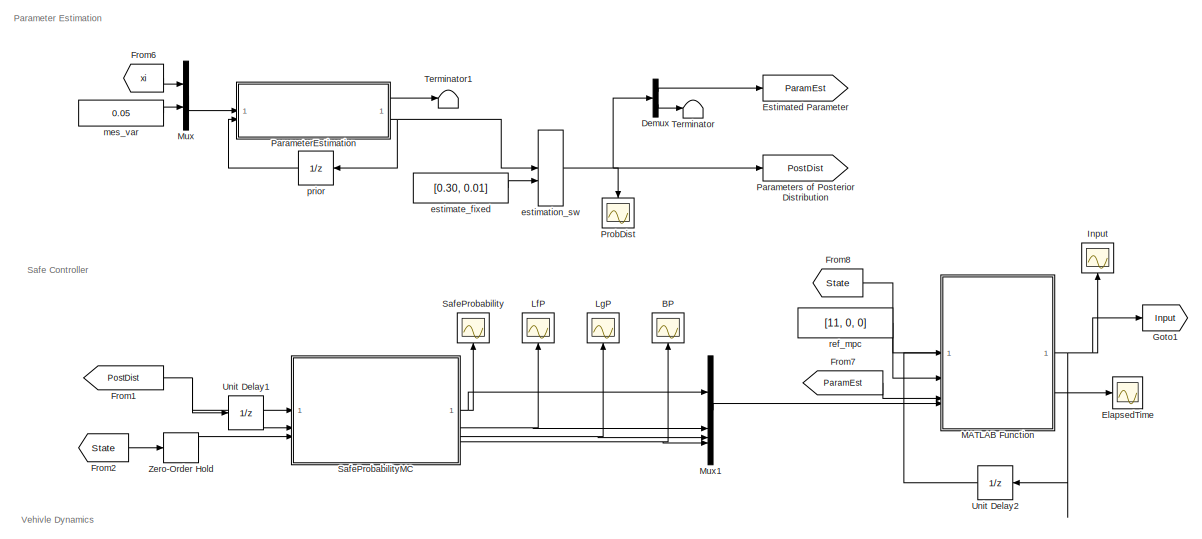
[diagram: root canvas - part 1/2, full width, top band]
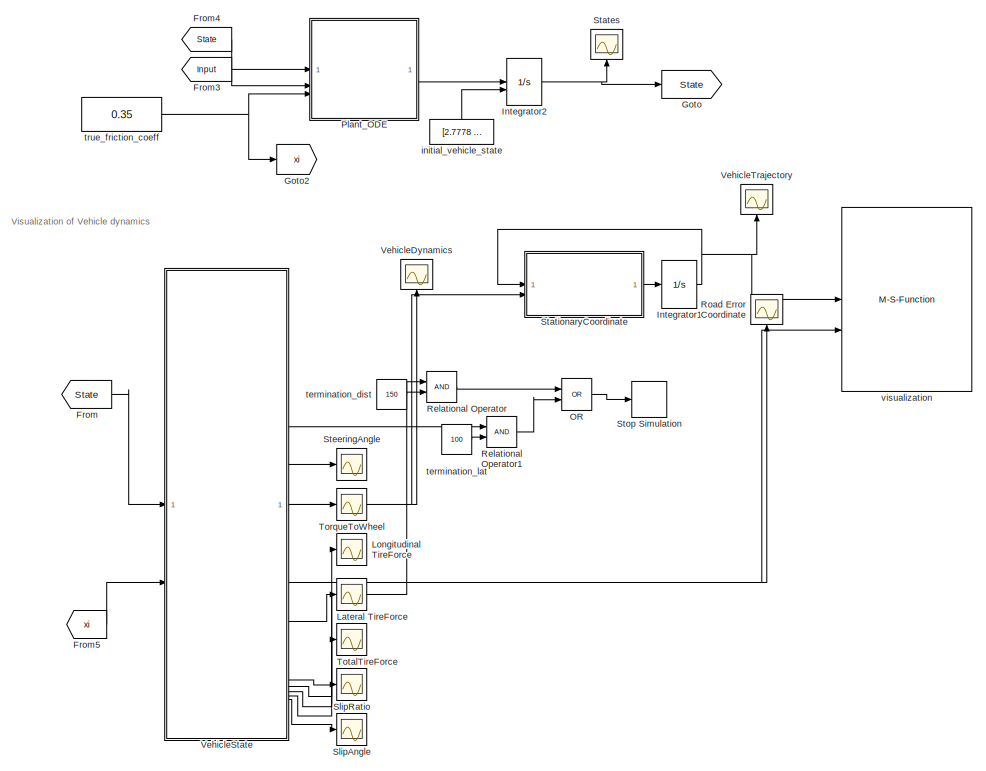
[diagram: root canvas - part 2/2, full width, bottom band]
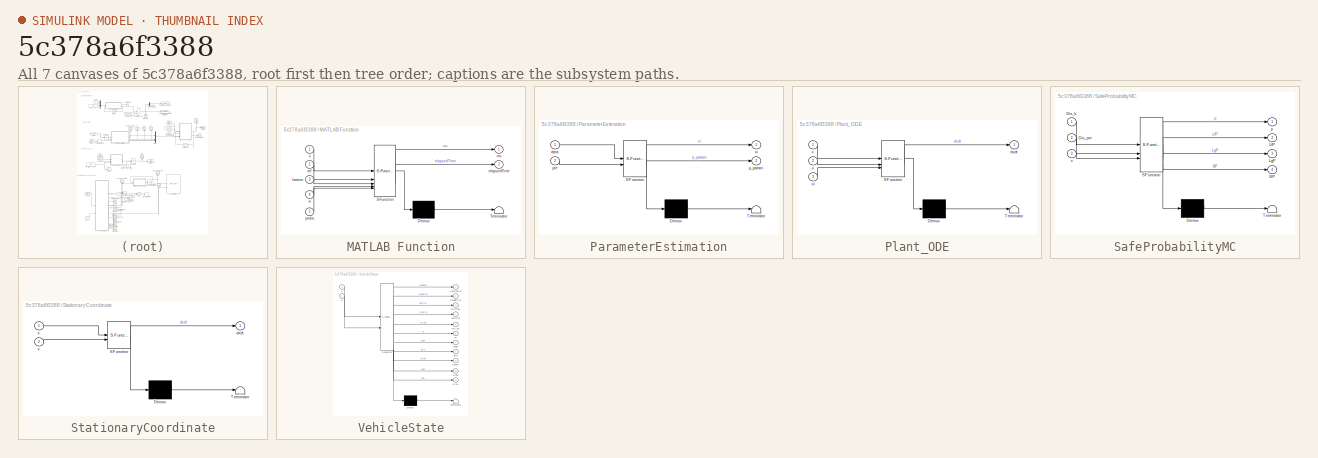
[diagram: thumbnail index - all 7 canvases of the model, root first then tree order]
MODEL slx_5c378a6f3388
KIND model
CONFIG AbsTol = auto
CONFIG EnableMultiTasking = off
CONFIG FixedStep = auto
CONFIG MaxStep = auto
CONFIG MinStep = auto
CONFIG RelTol = 1e-3
CONFIG SampleTimeConstraint = Unconstrained
CONFIG SolverName = VariableStepAuto
CONFIG StartTime = 0.0
CONFIG StopTime = 40
BLOCK [Scope] BP
  ActiveDisplayYMaximum = 0.10375
  ActiveDisplayYMinimum = -0.13375
  DataLogging = on
  DataLoggingVariableName = BP
  Floating = off
  GraphicalSettings = {"GraphicalSettings":{"LegacySettings":true,"Style":{"AxesScalingProperties":{"ScaleAxesLimitsAtStop":false},"Style":{"AxesColor":"[0 0 0]","ChannelNames":[""],"ColorOrder":"[1 1 0.0666666666666667;0.0745098039215686 0.623529411764706 1;1 0.411764705882353 0.16078431372549;0.392156862745098 0.831372549019608 0.0745098039215686;0.717647058823529 0.274509803921569 1;0.0588235294117647 1 1;1 0.074509...<+461ch>
  MultipleDisplayCache = [{"MaxYLimMag":0.13375,"MaxYLimReal":0.10375,"MinYLimMag":0,"MinYLimReal":-0.13375,"PlotAsMagnitudePhase":false,"ShowGrid":true,"ShowLegend":false,"Title":"%<SignalLabel>","YLabel":""}]
  NameLocation = top
  NumInputPorts = 1
  WasSavedAsWebScope = on
BLOCK [Demux] Demux
  Outputs = 2
BLOCK [Scope] ElapsedTime
  ActiveDisplayYMaximum = 0.91637
  ActiveDisplayYMinimum = -0.96659
  DataLogging = on
  DataLoggingVariableName = ElapsedTime
  Floating = off
  GraphicalSettings = {"Style":{"BackgroundColor":[0.12941176470588237,0.12941176470588237,0.12941176470588237],"AxesColor":[0.07058823529411765,0.07058823529411765,0.07058823529411765],"LabelsColor":[0.8509803921568627,0.8509803921568627,0.8509803921568627],"PreserveColors":false,"Visible":[true],"LineStyle":["-"],"LineWidth":[1.5],"BarWidth":[0.9],"LineColor":["auto"],"LineFaceAlpha":[1],"LineEdgeAlpha":[1],"Marker":...<+1970ch>
  MultipleDisplayCache = [{"MaxYLimMag":0.96659,"MaxYLimReal":0.91637,"MinYLimMag":0,"MinYLimReal":-0.96659,"PlotAsMagnitudePhase":false,"ShowGrid":true,"ShowLegend":true,"Title":"%<SignalLabel>","YLabel":""}]
  NameLocation = right
  NumInputPorts = 1
  SampleTime = 0.1
  ScopeFrameLocation = window
  ShowLegend = on
  Visible = on
  WasSavedAsWebScope = on
  WindowPosition = [770.000000,1.000000,1151.000000,305.000000,]
BLOCK [Goto] Estimated Parameter
  GotoTag = ParamEst
  NameLocation = top
BLOCK [From] From
  GotoTag = State
BLOCK [From] From1
  GotoTag = PostDist
BLOCK [From] From2
  GotoTag = State
BLOCK [From] From3
  GotoTag = Input
BLOCK [From] From4
  GotoTag = State
BLOCK [From] From5
  GotoTag = xi
BLOCK [From] From6
  GotoTag = xi
BLOCK [From] From7
  GotoTag = ParamEst
BLOCK [From] From8
  GotoTag = State
BLOCK [Goto] Goto
  GotoTag = State
BLOCK [Goto] Goto1
  GotoTag = Input
  NameLocation = top
BLOCK [Goto] Goto2
  GotoTag = xi
BLOCK [Scope] Input
  ActiveDisplayYMaximum = 0.91637
  ActiveDisplayYMinimum = -0.96659
  DataLogging = on
  DataLoggingVariableName = Input
  Floating = off
  GraphicalSettings = {"GraphicalSettings":{"LegacySettings":true,"Style":{"AxesScalingProperties":{"ScaleAxesLimitsAtStop":false},"Style":{"AxesColor":"[0 0 0]","ChannelNames":[""],"ColorOrder":"[1 0.909803921568627 0.392156862745098;0.149019607843137 0.549019607843137 0.866666666666667;0.96078431372549 0.466666666666667 0.16078431372549;0.286274509803922 0.858823529411765 0.250980392156863;0.752941176470588 0.3607843...<+645ch>
  MultipleDisplayCache = [{"MaxYLimMag":0.96659,"MaxYLimReal":0.91637,"MinYLimMag":0,"MinYLimReal":-0.96659,"PlotAsMagnitudePhase":false,"ShowGrid":true,"ShowLegend":true,"Title":"%<SignalLabel>","YLabel":""}]
  NameLocation = top
  NumInputPorts = 1
  ShowLegend = on
  WasSavedAsWebScope = on
  WindowPosition = [888 378 1141 312]
BLOCK [Integrator] Integrator1
  InitialCondition = [0; 0; 0]
BLOCK [Integrator] Integrator2
  InitialConditionSource = external
BLOCK [Scope] Lateral TireForce
  ActiveDisplayYMaximum = 1900.60095
  ActiveDisplayYMinimum = -924.98438
  DataLoggingVariableName = ScopeData1
  Floating = off
  GraphicalSettings = {"GraphicalSettings":{"LegacySettings":true,"Style":{"AxesScalingProperties":{"ScaleAxesLimitsAtStop":false},"Style":{"AxesColor":"[0 0 0]","ChannelNames":[""],"ColorOrder":"[1 1 0.0666666666666667;0.0745098039215686 0.623529411764706 1;1 0.411764705882353 0.16078431372549;0.392156862745098 0.831372549019608 0.0745098039215686;0.717647058823529 0.274509803921569 1;0.0588235294117647 1 1;1 0.074509...<+609ch>
  MultipleDisplayCache = [{"MaxYLimMag":1900.60095,"MaxYLimReal":1900.60095,"MinYLimMag":0,"MinYLimReal":-924.98438,"PlotAsMagnitudePhase":false,"ShowGrid":true,"ShowLegend":true,"Title":"%<SignalLabel>","YLabel":""}]
  NameLocation = right
  NumInputPorts = 1
  ShowLegend = on
  WasSavedAsWebScope = on
BLOCK [Scope] LfP
  ActiveDisplayYMaximum = 1.6375
  ActiveDisplayYMinimum = -5.7375
  DataLogging = on
  DataLoggingVariableName = LfP
  Floating = off
  GraphicalSettings = {"GraphicalSettings":{"LegacySettings":true,"Style":{"AxesScalingProperties":{"ScaleAxesLimitsAtStop":false},"Style":{"AxesColor":"[0 0 0]","ChannelNames":[""],"ColorOrder":"[1 1 0.0666666666666667;0.0745098039215686 0.623529411764706 1;1 0.411764705882353 0.16078431372549;0.392156862745098 0.831372549019608 0.0745098039215686;0.717647058823529 0.274509803921569 1;0.0588235294117647 1 1;1 0.074509...<+434ch>
  MultipleDisplayCache = [{"MaxYLimMag":5.7375,"MaxYLimReal":1.6375,"MinYLimMag":0,"MinYLimReal":-5.7375,"PlotAsMagnitudePhase":false,"ShowGrid":true,"ShowLegend":false,"Title":"%<SignalLabel>","YLabel":""}]
  NameLocation = top
  NumInputPorts = 1
  WasSavedAsWebScope = on
BLOCK [Scope] LgP
  ActiveDisplayYMaximum = 0.575
  ActiveDisplayYMinimum = -2.175
  DataLogging = on
  DataLoggingVariableName = LgP
  Floating = off
  GraphicalSettings = {"GraphicalSettings":{"LegacySettings":true,"Style":{"AxesScalingProperties":{"ScaleAxesLimitsAtStop":false},"Style":{"AxesColor":"[0 0 0]","ChannelNames":[""],"ColorOrder":"[1 1 0.0666666666666667;0.0745098039215686 0.623529411764706 1;1 0.411764705882353 0.16078431372549;0.392156862745098 0.831372549019608 0.0745098039215686;0.717647058823529 0.274509803921569 1;0.0588235294117647 1 1;1 0.074509...<+490ch>
  MultipleDisplayCache = [{"MaxYLimMag":2.175,"MaxYLimReal":0.575,"MinYLimMag":0,"MinYLimReal":-2.175,"PlotAsMagnitudePhase":false,"ShowGrid":true,"ShowLegend":true,"Title":"%<SignalLabel>","YLabel":""}]
  NameLocation = top
  NumInputPorts = 1
  ShowLegend = on
  WasSavedAsWebScope = on
BLOCK [Scope] Longitudinal TireForce
  ActiveDisplayYMaximum = 375.42257
  ActiveDisplayYMinimum = -313.11882
  DataLoggingVariableName = ScopeData1
  Floating = off
  GraphicalSettings = {"GraphicalSettings":{"LegacySettings":true,"Style":{"Style":{"AxesColor":"[0 0 0]","ChannelNames":[""],"ColorOrder":"[1 1 0.0666666666666667;0.0745098039215686 0.623529411764706 1;1 0.411764705882353 0.16078431372549;0.392156862745098 0.831372549019608 0.0745098039215686;0.717647058823529 0.274509803921569 1;0.0588235294117647 1 1;1 0.0745098039215686 0.650980392156863]","CurrentConfiguration":"e...<+552ch>
  MultipleDisplayCache = [{"MaxYLimMag":375.42257,"MaxYLimReal":375.42257,"MinYLimMag":0,"MinYLimReal":-313.11882,"PlotAsMagnitudePhase":false,"ShowGrid":true,"ShowLegend":true,"Title":"%<SignalLabel>","YLabel":""}]
  NameLocation = right
  NumInputPorts = 1
  ShowLegend = on
  WasSavedAsWebScope = on
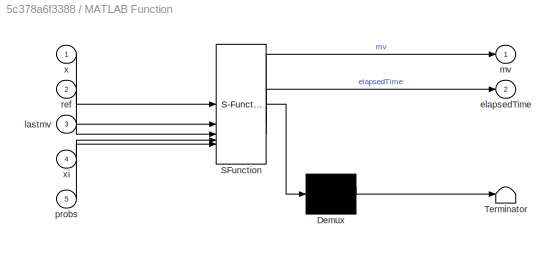
BLOCK [SubSystem] MATLAB Function
  ErrorFcn = Stateflow.Translate.translate
  LibrarySourceBlock = simulink/User-Defined\nFunctions/MATLAB Function
  PermitHierarchicalResolution = ExplicitOnly
  SFBlockType = MATLAB Function
  TreatAsAtomicUnit = on
BLOCK [Demux] MATLAB Function/ Demux 
  Outputs = 1
BLOCK [S-Function] MATLAB Function/ SFunction 
  EnableBusSupport = off
  FunctionName = sf_sfun
  Parameters = coreData,onlineData
  PortCounts = [5 3]
  SFcnIsStateOwnerBlock = off
  SFunctionDeploymentMode = off
  Tag = Stateflow S-Function 4
BLOCK [Terminator] MATLAB Function/ Terminator 
BLOCK [Outport] MATLAB Function/elapsedTime
  Port = 2
BLOCK [Inport] MATLAB Function/lastmv
  Port = 3
BLOCK [Outport] MATLAB Function/mv
BLOCK [Inport] MATLAB Function/probs
  Port = 5
BLOCK [Inport] MATLAB Function/ref
  Port = 2
BLOCK [Inport] MATLAB Function/x
BLOCK [Inport] MATLAB Function/xi
  Port = 4
BLOCK [Mux] Mux
  DisplayOption = bar
  Inputs = 2
BLOCK [Mux] Mux1
  DisplayOption = bar
BLOCK [Logic] OR
  AllPortsSameDT = off
  IconShape = distinctive
  Operator = OR
  OutDataTypeStr = boolean
BLOCK [SubSystem] ParameterEstimation
  ErrorFcn = Stateflow.Translate.translate
  NameLocation = top
  PermitHierarchicalResolution = ExplicitOnly
  SFBlockType = MATLAB Function
  TreatAsAtomicUnit = on
BLOCK [Demux] ParameterEstimation/ Demux 
  Outputs = 1
BLOCK [S-Function] ParameterEstimation/ SFunction 
  EnableBusSupport = off
  FunctionName = sf_sfun
  PortCounts = [2 3]
  SFcnIsStateOwnerBlock = off
  SFunctionDeploymentMode = off
  Tag = Stateflow S-Function 2
BLOCK [Terminator] ParameterEstimation/ Terminator 
BLOCK [Inport] ParameterEstimation/data
BLOCK [Outport] ParameterEstimation/p_param
  Port = 2
BLOCK [Inport] ParameterEstimation/pre
  Port = 2
BLOCK [Outport] ParameterEstimation/xi
BLOCK [Goto] Parameters of Posterior Distribution
  GotoTag = PostDist
  NameLocation = top
BLOCK [SubSystem] Plant_ODE
  ErrorFcn = Stateflow.Translate.translate
  NameLocation = top
  PermitHierarchicalResolution = ExplicitOnly
  SFBlockType = MATLAB Function
  TreatAsAtomicUnit = on
BLOCK [Demux] Plant_ODE/ Demux 
  Outputs = 1
BLOCK [S-Function] Plant_ODE/ SFunction 
  EnableBusSupport = off
  FunctionName = sf_sfun
  PortCounts = [3 2]
  SFcnIsStateOwnerBlock = off
  SFunctionDeploymentMode = off
  Tag = Stateflow S-Function 6
BLOCK [Terminator] Plant_ODE/ Terminator 
BLOCK [Outport] Plant_ODE/dxdt
BLOCK [Inport] Plant_ODE/u
  Port = 2
BLOCK [Inport] Plant_ODE/x
BLOCK [Inport] Plant_ODE/xi
  Port = 3
BLOCK [Scope] ProbDist
  ActiveDisplayYMaximum = 1.00583
  ActiveDisplayYMinimum = -0.11139
  DataLogging = on
  DataLoggingVariableName = ProbDist
  Floating = off
  GraphicalSettings = {"GraphicalSettings":{"LegacySettings":true,"Style":{"AxesScalingProperties":{"ScaleAxesLimitsAtStop":false},"Style":{"AxesColor":"[0 0 0]","ChannelNames":[""],"ColorOrder":"[1 1 0.0666666666666667;0.0745098039215686 0.623529411764706 1;1 0.411764705882353 0.16078431372549;0.392156862745098 0.831372549019608 0.0745098039215686;0.717647058823529 0.274509803921569 1;0.0588235294117647 1 1;1 0.074509...<+439ch>
  MultipleDisplayCache = [{"MaxYLimMag":1.00583,"MaxYLimReal":1.00583,"MinYLimMag":0,"MinYLimReal":-0.11139,"PlotAsMagnitudePhase":false,"ShowGrid":true,"ShowLegend":false,"Title":"%<SignalLabel>","YLabel":""}]
  NumInputPorts = 1
  WasSavedAsWebScope = on
BLOCK [RelationalOperator] Relational Operator
  InputSameDT = off
  OutDataTypeStr = boolean
  RndMeth = Simplest
BLOCK [RelationalOperator] Relational Operator1
  InputSameDT = off
  OutDataTypeStr = boolean
  RndMeth = Simplest
BLOCK [Scope] Road Error Coordinate
  ActiveDisplayYMaximum = 0.0002
  ActiveDisplayYMinimum = -5E-5
  DataLoggingVariableName = ScopeData3
  Floating = off
  GraphicalSettings = {"GraphicalSettings":{"LegacySettings":true,"Style":{"Style":{"AxesColor":"[0 0 0]","ChannelNames":[""],"ColorOrder":"[1 1 0.0666666666666667;0.0745098039215686 0.623529411764706 1;1 0.411764705882353 0.16078431372549;0.392156862745098 0.831372549019608 0.0745098039215686;0.717647058823529 0.274509803921569 1;0.0588235294117647 1 1;1 0.0745098039215686 0.650980392156863]","CurrentConfiguration":"e...<+544ch>
  MultipleDisplayCache = [{"MaxYLimMag":0.0002,"MaxYLimReal":0.0002,"MinYLimMag":0,"MinYLimReal":-5E-5,"PlotAsMagnitudePhase":false,"ShowGrid":true,"ShowLegend":true,"Title":"%<SignalLabel>","YLabel":""}]
  NameLocation = top
  NumInputPorts = 1
  ShowLegend = on
  WasSavedAsWebScope = on
BLOCK [Scope] SafeProbability
  ActiveDisplayYMaximum = 1.125
  ActiveDisplayYMinimum = -0.125
  DataLogging = on
  DataLoggingVariableName = SafeProb
  Floating = off
  GraphicalSettings = {"GraphicalSettings":{"LegacySettings":true,"Style":{"AxesScalingProperties":{"ScaleAxesLimitsAtStop":false},"Style":{"AxesColor":"[0 0 0]","ChannelNames":[""],"ColorOrder":"[1 0.909803921568627 0.392156862745098;0.149019607843137 0.549019607843137 0.866666666666667;0.96078431372549 0.466666666666667 0.16078431372549;0.286274509803922 0.858823529411765 0.250980392156863;0.752941176470588 0.3607843...<+512ch>
  MultipleDisplayCache = [{"MaxYLimMag":1.125,"MaxYLimReal":1.125,"MinYLimMag":0,"MinYLimReal":-0.125,"PlotAsMagnitudePhase":false,"ShowGrid":true,"ShowLegend":false,"Title":"%<SignalLabel>","YLabel":""}]
  NameLocation = top
  NumInputPorts = 1
  WasSavedAsWebScope = on
  WindowPosition = [93 553 755 265]
BLOCK [SubSystem] SafeProbabilityMC
  ErrorFcn = Stateflow.Translate.translate
  NameLocation = top
  PermitHierarchicalResolution = ExplicitOnly
  SFBlockType = MATLAB Function
  TreatAsAtomicUnit = on
BLOCK [Demux] SafeProbabilityMC/ Demux 
  Outputs = 1
BLOCK [S-Function] SafeProbabilityMC/ SFunction 
  EnableBusSupport = off
  FunctionName = sf_sfun
  Parameters = dt,emax,horizon,snum
  PortCounts = [3 5]
  SFcnIsStateOwnerBlock = off
  SFunctionDeploymentMode = off
  Tag = Stateflow S-Function 3
BLOCK [Terminator] SafeProbabilityMC/ Terminator 
BLOCK [Outport] SafeProbabilityMC/BP
  Port = 4
BLOCK [Inport] SafeProbabilityMC/Dis_k
BLOCK [Inport] SafeProbabilityMC/Dis_pre
  Port = 2
BLOCK [Outport] SafeProbabilityMC/LfP
  Port = 2
BLOCK [Outport] SafeProbabilityMC/LgP
  Port = 3
BLOCK [Outport] SafeProbabilityMC/p
BLOCK [Inport] SafeProbabilityMC/x
  Port = 3
BLOCK [Scope] SlipAngle
  ActiveDisplayYMaximum = 0.1231
  ActiveDisplayYMinimum = -0.25893
  DataLogging = on
  DataLoggingVariableName = slipA
  Floating = off
  GraphicalSettings = {"GraphicalSettings":{"LegacySettings":true,"Style":{"AxesScalingProperties":{"ScaleAxesLimitsAtStop":false},"Style":{"AxesColor":"[0 0 0]","ChannelNames":[""],"ColorOrder":"[1 1 0.0666666666666667;0.0745098039215686 0.623529411764706 1;1 0.411764705882353 0.16078431372549;0.392156862745098 0.831372549019608 0.0745098039215686;0.717647058823529 0.274509803921569 1;0.0588235294117647 1 1;1 0.074509...<+598ch>
  MultipleDisplayCache = [{"MaxYLimMag":0.25893,"MaxYLimReal":0.1231,"MinYLimMag":0,"MinYLimReal":-0.25893,"PlotAsMagnitudePhase":false,"ShowGrid":true,"ShowLegend":true,"Title":"%<SignalLabel>","YLabel":""}]
  NameLocation = right
  NumInputPorts = 1
  ShowLegend = on
  WasSavedAsWebScope = on
BLOCK [Scope] SlipRatio
  ActiveDisplayYMaximum = 0.00922
  ActiveDisplayYMinimum = -0.0048
  DataLogging = on
  DataLoggingVariableName = slipR
  Floating = off
  GraphicalSettings = {"GraphicalSettings":{"LegacySettings":true,"Style":{"AxesScalingProperties":{"ScaleAxesLimitsAtStop":false},"Style":{"AxesColor":"[0 0 0]","ChannelNames":[""],"ColorOrder":"[1 1 0.0666666666666667;0.0745098039215686 0.623529411764706 1;1 0.411764705882353 0.16078431372549;0.392156862745098 0.831372549019608 0.0745098039215686;0.717647058823529 0.274509803921569 1;0.0588235294117647 1 1;1 0.074509...<+609ch>
  MultipleDisplayCache = [{"MaxYLimMag":0.00922,"MaxYLimReal":0.00922,"MinYLimMag":0,"MinYLimReal":-0.0048,"PlotAsMagnitudePhase":false,"ShowGrid":true,"ShowLegend":true,"Title":"%<SignalLabel>","YLabel":""}]
  NameLocation = right
  NumInputPorts = 1
  ShowLegend = on
  WasSavedAsWebScope = on
BLOCK [Scope] States
  ActiveDisplayYMaximum = 230.07424
  ActiveDisplayYMinimum = -179.2878
  DataLogging = on
  DataLoggingVariableName = State
  Floating = off
  GraphicalSettings = {"GraphicalSettings":{"LegacySettings":true,"Style":{"AxesScalingProperties":{"ScaleAxesLimitsAtStop":false},"Style":{"AxesColor":"[0 0 0]","ChannelNames":[""],"ColorOrder":"[1 0.909803921568627 0.392156862745098;0.149019607843137 0.549019607843137 0.866666666666667;0.96078431372549 0.466666666666667 0.16078431372549;0.286274509803922 0.858823529411765 0.250980392156863;0.752941176470588 0.3607843...<+774ch>
  MultipleDisplayCache = [{"MaxYLimMag":230.07424,"MaxYLimReal":230.07424,"MinYLimMag":0,"MinYLimReal":-179.2878,"PlotAsMagnitudePhase":false,"ShowGrid":true,"ShowLegend":true,"Title":"%<SignalLabel>","YLabel":""}]
  NameLocation = top
  NumInputPorts = 1
  SampleTime = 0.1
  ShowLegend = on
  WasSavedAsWebScope = on
  WindowPosition = [113 31 776 293]
BLOCK [SubSystem] StationaryCoordinate
  ErrorFcn = Stateflow.Translate.translate
  PermitHierarchicalResolution = ExplicitOnly
  SFBlockType = MATLAB Function
  TreatAsAtomicUnit = on
BLOCK [Demux] StationaryCoordinate/ Demux 
  Outputs = 1
BLOCK [S-Function] StationaryCoordinate/ SFunction 
  EnableBusSupport = off
  FunctionName = sf_sfun
  PortCounts = [2 2]
  SFcnIsStateOwnerBlock = off
  SFunctionDeploymentMode = off
  Tag = Stateflow S-Function 1
BLOCK [Terminator] StationaryCoordinate/ Terminator 
BLOCK [Outport] StationaryCoordinate/dxdt
BLOCK [Inport] StationaryCoordinate/v
  Port = 2
BLOCK [Inport] StationaryCoordinate/x
BLOCK [Scope] SteeringAngle
  ActiveDisplayYMaximum = 0.39116625122994469
  ActiveDisplayYMinimum = -0.32134275248447025
  DataLoggingVariableName = ScopeData1
  Floating = off
  GraphicalSettings = {"Style":{"BackgroundColor":[0.12941176470588237,0.12941176470588237,0.12941176470588237],"AxesColor":[0.07058823529411765,0.07058823529411765,0.07058823529411765],"LabelsColor":[0.8509803921568627,0.8509803921568627,0.8509803921568627],"PreserveColors":false,"Visible":[true],"LineStyle":["-"],"LineWidth":[1.5],"BarWidth":[0.9],"LineColor":["auto"],"LineFaceAlpha":[1],"LineEdgeAlpha":[1],"Marker":...<+2042ch>
  MultipleDisplayCache = [{"MaxYLimMag":0.39116625122994469,"MaxYLimReal":0.39116625122994469,"MinYLimMag":0,"MinYLimReal":-0.32134275248447025,"PlotAsMagnitudePhase":false,"ShowGrid":true,"ShowLegend":false,"Title":"%<SignalLabel>","YLabel":""}]
  NameLocation = right
  NumInputPorts = 1
  ScopeFrameLocation = window
  Visible = on
  WasSavedAsWebScope = on
  WindowPosition = [761.000000,184.000000,1160.000000,163.000000,]
BLOCK [Stop] Stop Simulation
BLOCK [Terminator] Terminator
BLOCK [Terminator] Terminator1
BLOCK [Scope] TorqueToWheel
  ActiveDisplayYMaximum = 271.06293
  ActiveDisplayYMinimum = -256.25579
  DataLoggingVariableName = ScopeData2
  Floating = off
  GraphicalSettings = {"GraphicalSettings":{"LegacySettings":true,"Style":{"AxesScalingProperties":{"ScaleAxesLimitsAtStop":false},"Style":{"AxesColor":"[0 0 0]","ChannelNames":[""],"ColorOrder":"[1 1 0.0666666666666667;0.0745098039215686 0.623529411764706 1;1 0.411764705882353 0.16078431372549;0.392156862745098 0.831372549019608 0.0745098039215686;0.717647058823529 0.274509803921569 1;0.0588235294117647 1 1;1 0.074509...<+464ch>
  MultipleDisplayCache = [{"MaxYLimMag":271.06293,"MaxYLimReal":271.06293,"MinYLimMag":0,"MinYLimReal":-256.25579,"PlotAsMagnitudePhase":false,"ShowGrid":true,"ShowLegend":false,"Title":"%<SignalLabel>","YLabel":""}]
  NameLocation = right
  NumInputPorts = 1
  WasSavedAsWebScope = on
BLOCK [Scope] TotalTireForce
  ActiveDisplayYMaximum = 630.35171
  ActiveDisplayYMinimum = -70.03908
  DataLogging = on
  DataLoggingVariableName = TireForce
  Floating = off
  GraphicalSettings = {"GraphicalSettings":{"LegacySettings":true,"Style":{"AxesScalingProperties":{"ScaleAxesLimitsAtStop":false},"Style":{"AxesColor":"[0 0 0]","ChannelNames":[""],"ColorOrder":"[1 1 0.0666666666666667;0.0745098039215686 0.623529411764706 1;1 0.411764705882353 0.16078431372549;0.392156862745098 0.831372549019608 0.0745098039215686;0.717647058823529 0.274509803921569 1;0.0588235294117647 1 1;1 0.074509...<+514ch>
  MultipleDisplayCache = [{"MaxYLimMag":630.35171,"MaxYLimReal":630.35171,"MinYLimMag":0,"MinYLimReal":-70.03908,"PlotAsMagnitudePhase":false,"ShowGrid":true,"ShowLegend":true,"Title":"%<SignalLabel>","YLabel":""}]
  NameLocation = right
  NumInputPorts = 1
  ShowLegend = on
  WasSavedAsWebScope = on
BLOCK [UnitDelay] Unit Delay1
  HasFrameUpgradeWarning = on
  SampleTime = -1
BLOCK [UnitDelay] Unit Delay2
  HasFrameUpgradeWarning = on
  NameLocation = top
  SampleTime = -1
BLOCK [Scope] VehicleDynamics
  ActiveDisplayYMaximum = 6.57776
  ActiveDisplayYMinimum = -0.80591
  DataLogging = on
  DataLoggingVariableName = ScopeData2
  Floating = off
  GraphicalSettings = {"Style":{"BackgroundColor":[0.12941176470588237,0.12941176470588237,0.12941176470588237],"AxesColor":[0.07058823529411765,0.07058823529411765,0.07058823529411765],"LabelsColor":[0.8509803921568627,0.8509803921568627,0.8509803921568627],"PreserveColors":false,"Visible":[true,true,true],"LineStyle":["-","-","-"],"LineWidth":[1.5,1.5,1.5],"BarWidth":[0.9,0.9,0.9],"LineColor":["auto","auto","auto"],"...<+2270ch>
  MultipleDisplayCache = [{"MaxYLimMag":6.57776,"MaxYLimReal":6.57776,"MinYLimMag":0,"MinYLimReal":-0.80591,"PlotAsMagnitudePhase":false,"ShowGrid":true,"ShowLegend":true,"Title":"%<SignalLabel>","YLabel":""}]
  NameLocation = top
  NumInputPorts = 1
  ScopeFrameLocation = window
  ShowLegend = on
  Visible = on
  WasSavedAsWebScope = on
  WindowPosition = [114.000000,40.000000,926.000000,247.000000,]
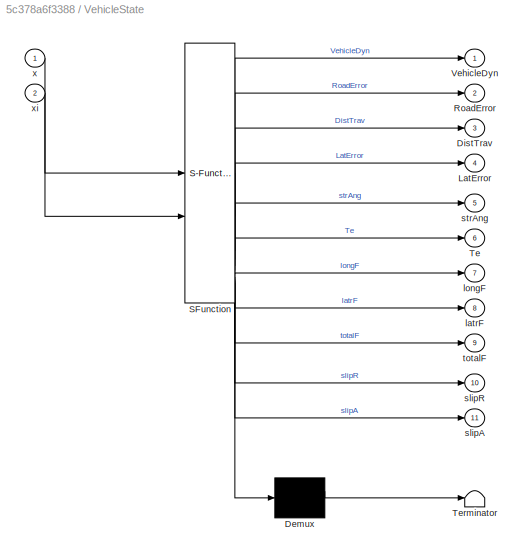
BLOCK [SubSystem] VehicleState
  ErrorFcn = Stateflow.Translate.translate
  PermitHierarchicalResolution = ExplicitOnly
  SFBlockType = MATLAB Function
  TreatAsAtomicUnit = on
BLOCK [Demux] VehicleState/ Demux 
  Outputs = 1
BLOCK [S-Function] VehicleState/ SFunction 
  EnableBusSupport = off
  FunctionName = sf_sfun
  PortCounts = [2 12]
  SFcnIsStateOwnerBlock = off
  SFunctionDeploymentMode = off
  Tag = Stateflow S-Function 5
BLOCK [Terminator] VehicleState/ Terminator 
BLOCK [Outport] VehicleState/DistTrav
  Port = 3
BLOCK [Outport] VehicleState/LatError
  Port = 4
BLOCK [Outport] VehicleState/RoadError
  Port = 2
BLOCK [Outport] VehicleState/Te
  Port = 6
BLOCK [Outport] VehicleState/VehicleDyn
BLOCK [Outport] VehicleState/latrF
  Port = 8
BLOCK [Outport] VehicleState/longF
  Port = 7
BLOCK [Outport] VehicleState/slipA
  Port = 11
BLOCK [Outport] VehicleState/slipR
  Port = 10
BLOCK [Outport] VehicleState/strAng
  Port = 5
BLOCK [Outport] VehicleState/totalF
  Port = 9
BLOCK [Inport] VehicleState/x
BLOCK [Inport] VehicleState/xi
  Port = 2
BLOCK [Scope] VehicleTrajectory
  ActiveDisplayYMaximum = 88.79585
  ActiveDisplayYMinimum = 81.20316
  DataLogging = on
  DataLoggingVariableName = Trajectory
  Floating = off
  GraphicalSettings = {"GraphicalSettings":{"LegacySettings":true,"Style":{"AxesScalingProperties":{"ScaleAxesLimitsAtStop":false},"Style":{"AxesColor":"[0 0 0]","ChannelNames":[""],"ColorOrder":"[1 1 0.0666666666666667;0.0745098039215686 0.623529411764706 1;1 0.411764705882353 0.16078431372549;0.392156862745098 0.831372549019608 0.0745098039215686;0.717647058823529 0.274509803921569 1;0.0588235294117647 1 1;1 0.074509...<+705ch>
  MultipleDisplayCache = [{"MaxYLimMag":88.79585,"MaxYLimReal":88.79585,"MinYLimMag":81.20316,"MinYLimReal":81.20316,"PlotAsMagnitudePhase":false,"ShowGrid":true,"ShowLegend":true,"Title":"%<SignalLabel>","YLabel":""}]
  NameLocation = top
  NumInputPorts = 1
  SampleTime = 0.1
  ShowLegend = on
  WasSavedAsWebScope = on
BLOCK [ZeroOrderHold] Zero-Order Hold
  SampleTime = 0.1
BLOCK [Constant] estimate_fixed
  Value = [0.30, 0.01]
BLOCK [ManualSwitch] estimation_sw
BLOCK [Constant] initial_vehicle_state
  Value = [2.7778           0           0           0       8.547       8.547       8.547       8.547           0           0           0           0]
BLOCK [Constant] mes_var
  Value = 0.05
BLOCK [UnitDelay] prior
  HasFrameUpgradeWarning = on
  InitialCondition = [0.9 0.3]
  SampleTime = -1
BLOCK [Constant] ref_mpc
  Value = [11, 0, 0]
  VectorParams1D = off
BLOCK [Constant] termination_dist
  Value = 150
BLOCK [Constant] termination_lat
  Value = 100
BLOCK [Constant] true_friction_coeff
  NameLocation = left
  Value = 0.35
BLOCK [M-S-Function] visualization
  Commented = on
  FunctionName = msfun_visualize_motion
ANNOTATION (root): Parameter Estimation
ANNOTATION (root): Safe Controller
ANNOTATION (root): Vehivle Dynamics
ANNOTATION (root): Visualization of Vehicle dynamics
LINE Demux:1 -> Estimated Parameter:1
LINE Demux:2 -> Terminator:1
NET From1:1 -> SafeProbabilityMC:1, Unit Delay1:1
LINE From2:1 -> Zero-Order Hold:1
LINE From3:1 -> Plant_ODE:2
LINE From4:1 -> Plant_ODE:1
LINE From5:1 -> VehicleState:2
LINE From6:1 -> Mux:1
LINE From7:1 -> MATLAB Function:4
LINE From8:1 -> MATLAB Function:1
LINE From:1 -> VehicleState:1
NET Integrator1:1 -> StationaryCoordinate:1, VehicleTrajectory:1, visualization:1
NET Integrator2:1 -> Goto:1, States:1
NET MATLAB Function:1 -> Goto1:1, Input:1, Unit Delay2:1
LINE MATLAB Function:2 -> ElapsedTime:1
LINE Mux1:1 -> MATLAB Function:5
LINE Mux:1 -> ParameterEstimation:1
LINE OR:1 -> Stop Simulation:1
LINE ParameterEstimation:1 -> Terminator1:1
NET ParameterEstimation:2 -> estimation_sw:1, prior:1
LINE Plant_ODE:1 -> Integrator2:1
LINE Relational Operator1:1 -> OR:2
LINE Relational Operator:1 -> OR:1
NET SafeProbabilityMC:1 -> Mux1:1, SafeProbability:1
NET SafeProbabilityMC:2 -> LfP:1, Mux1:2
NET SafeProbabilityMC:3 -> LgP:1, Mux1:3
NET SafeProbabilityMC:4 -> BP:1, Mux1:4
LINE StationaryCoordinate:1 -> Integrator1:1
LINE Unit Delay1:1 -> SafeProbabilityMC:2
LINE Unit Delay2:1 -> MATLAB Function:3
NET VehicleState:1 -> StationaryCoordinate:2, VehicleDynamics:1
LINE VehicleState:10 -> SlipRatio:1
LINE VehicleState:11 -> SlipAngle:1
NET VehicleState:2 -> Road Error Coordinate:1, visualization:2
LINE VehicleState:3 -> Relational Operator:1
LINE VehicleState:4 -> Relational Operator1:1
LINE VehicleState:5 -> SteeringAngle:1
LINE VehicleState:6 -> TorqueToWheel:1
LINE VehicleState:7 -> Longitudinal TireForce:1
LINE VehicleState:8 -> Lateral TireForce:1
LINE VehicleState:9 -> TotalTireForce:1
LINE Zero-Order Hold:1 -> SafeProbabilityMC:3
LINE estimate_fixed:1 -> estimation_sw:2
NET estimation_sw:1 -> Demux:1, Parameters of Posterior Distribution:1, ProbDist:1
LINE initial_vehicle_state:1 -> Integrator2:2
LINE mes_var:1 -> Mux:2
LINE prior:1 -> ParameterEstimation:2
LINE ref_mpc:1 -> MATLAB Function:2
LINE termination_dist:1 -> Relational Operator:2
LINE termination_lat:1 -> Relational Operator1:2
NET true_friction_coeff:1 -> Goto2:1, Plant_ODE:3
note: NET lines group one-source signal fan-out (src -> all destinations, sorted); 1:1 wires keep LINE
CHART StationaryCoordinate states=1 transitions=1
  STATE_LABEL 'eML_blk_kernel()'
  STATE_LABEL 'SCRIPT:\nfunction dxdt = stationary_coordinate(x,v)\n\n    % current coordinate\n    %X   = x(1); \n    %Y   = x(2); \n    Psi = x(3);\n    \n    % velocities\n    Vx = v(1);\n    Vy = v(2);\n    r  = v(3);\n    \n    dxdt = zeros(size(x));\n    dxdt(1) = Vx*cos(Psi) - Vy*sin(Psi);\n    dxdt(2) = Vy*cos(Psi) + Vx*sin(Psi);\n    dxdt(3) = r;\n'
CHART ParameterEstimation states=1 transitions=1
  STATE_LABEL 'eML_blk_kernel()'
  STATE_LABEL 'SCRIPT:\nfunction [xi, p_param] = estimator(data, pre)\n\n    p_param = mfun_estimator(data, pre);\n    xi = p_param(1);'
CHART SafeProbabilityMC states=1 transitions=1
  STATE_LABEL 'eML_blk_kernel()'
  STATE_LABEL 'SCRIPT:\nfunction [p,LfP, LgP, BP] = safe_probability_MC(Dis_k,Dis_pre, x,dt,snum,horizon,emax)\n\n    if Dis_pre == 0\n        Dis_pre = Dis_k;\n    end\n    \n    [p, LfP, LgP, BP] = mfun_safe_probability_MC(x, Dis_k,Dis_pre, dt,snum,horizon,emax);\n\n'
CHART MATLAB Function states=1 transitions=1
  STATE_LABEL 'eML_blk_kernel()'
  STATE_LABEL 'SCRIPT:\nfunction [mv, elapsedTime] = MPC(x, ref, lastmv, xi, probs, onlineData, coreData)\n\n    data = onlineData;\n    data.ref = ref; %[40*1000/3600 0 0];\n    data.Parameters = { xi, probs }; \n\n    coder.extrinsic("fun_mpc_controller");\n    mv = [0;0];\n    tic\n    mv = fun_mpc_controller(coreData, x, lastmv, data);\n    elapsedTime = toc;\n    %disp(elapsedTime)\n\n'
CHART VehicleState states=1 transitions=1
  STATE_LABEL 'eML_blk_kernel()'
  STATE_LABEL 'SCRIPT:\nfunction [VehicleDyn, RoadError, DistTrav, LatError, strAng, Te, longF, latrF, totalF, slipR, slipA]   = VehicleStates(x, xi)\n\n% Vehicle dyanmics\nVehicleDyn = x(1:3);\n\n% Distance traveled\nDistTrav = x(10);\n\n% Lateral error\nLatError = abs(x(11));\n\n\n% Road error coordinate\nRoadError = x(11:12);\n\n% Steering and Input trque\nstrAng = x(4);\nTe     = x(9);\n\n% Tire forces\ntireF = lugre_tireF(x, xi...<+377ch>'
CHART Plant_ODE states=1 transitions=1
  STATE_LABEL 'eML_blk_kernel()'
  STATE_LABEL 'SCRIPT:\nfunction dxdt = plant_dyn(x,u,xi)\n\n dxdt = fun_f(x,xi) + fun_g(x)* u;\n\n%   dxdt = suppl_mdl_vehicle_lateral(x,u);\n'
CHART  states=0 transitions=0
CHART  states=0 transitions=0
CHART  states=0 transitions=0
CHART  states=0 transitions=0
CHART  states=0 transitions=0
CHART  states=0 transitions=0
